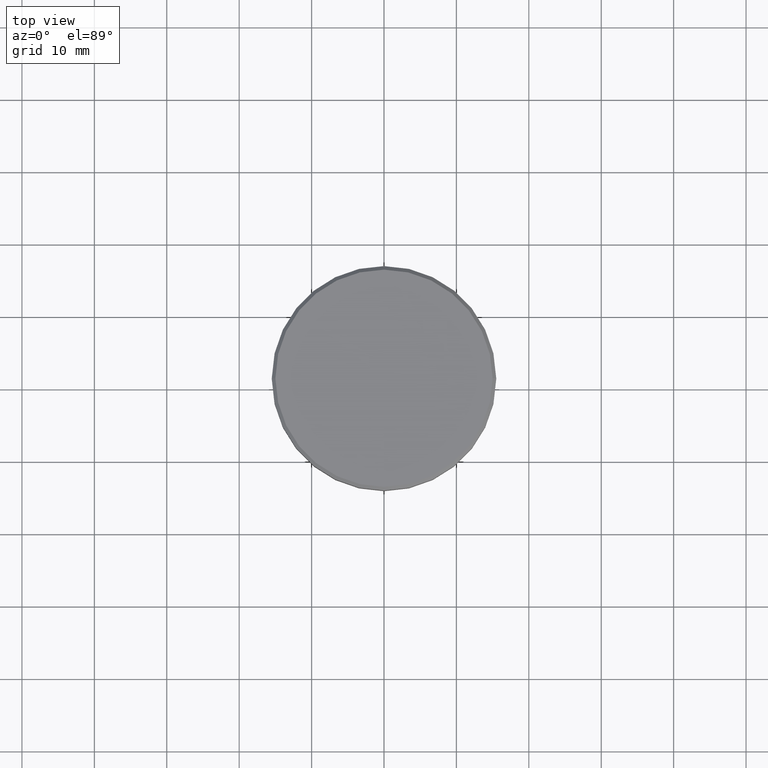
[diagram: clean part render]
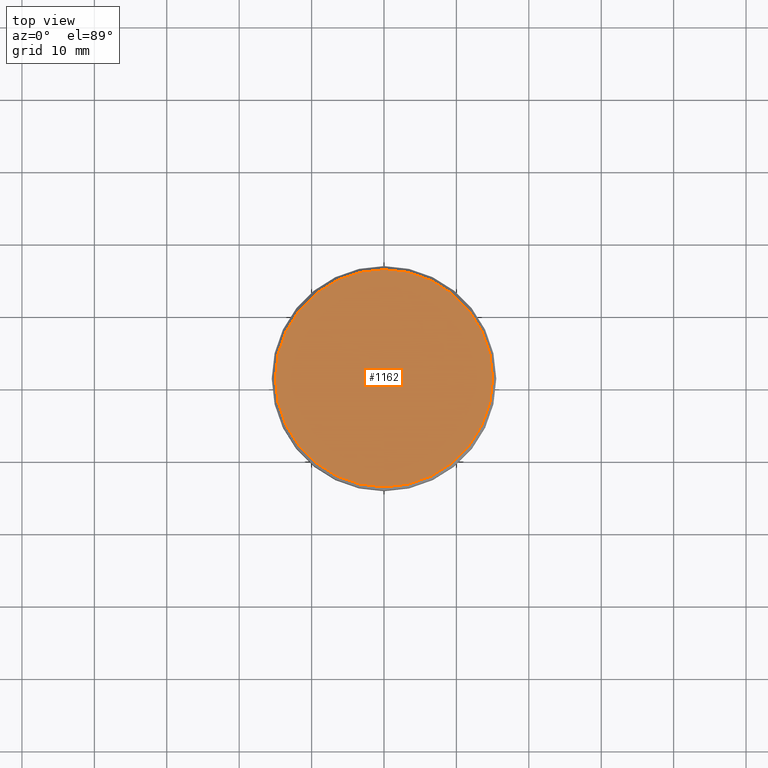
[diagram: same view with one face highlighted and labeled with its STEP entity id]
A machine part, top view. The second image highlights one B-rep face of the part: STEP entity #1162.
In plain terms, the highlighted planar face has unit normal (0, -0, 1).
Its self-contained STEP definition (entity closure, byte-faithful):
#16 = DIRECTION ( 'NONE',  ( -0.000000000000000000, -0.000000000000000000, 1.000000000000000000 ) ) ;
#34 = EDGE_CURVE ( 'NONE', #744, #269, #616, .T. ) ;
#77 = ORIENTED_EDGE ( 'NONE', *, *, #570, .T. ) ;
#78 = CARTESIAN_POINT ( 'NONE',  ( 15.00000000000000000, 1.867586368699713376E-15, 0.000000000000000000 ) ) ;
#110 = DIRECTION ( 'NONE',  ( -0.000000000000000000, -0.000000000000000000, 1.000000000000000000 ) ) ;
#122 = AXIS2_PLACEMENT_3D ( 'NONE', #331, #235, #968 ) ;
#124 = AXIS2_PLACEMENT_3D ( 'NONE', #738, #110, #478 ) ;
#143 = FACE_OUTER_BOUND ( 'NONE', #712, .T. ) ;
#144 = CIRCLE ( 'NONE', #124, 15.00000000000000000 ) ;
#235 = DIRECTION ( 'NONE',  ( 0.000000000000000000, -0.000000000000000000, 1.000000000000000000 ) ) ;
#269 = VERTEX_POINT ( 'NONE', #78 ) ;
#331 = CARTESIAN_POINT ( 'NONE',  ( 0.000000000000000000, 0.000000000000000000, 0.000000000000000000 ) ) ;
#478 = DIRECTION ( 'NONE',  ( 1.000000000000000000, 0.000000000000000000, 0.000000000000000000 ) ) ;
#569 = CARTESIAN_POINT ( 'NONE',  ( 0.000000000000000000, 0.000000000000000000, 0.000000000000000000 ) ) ;
#570 = EDGE_CURVE ( 'NONE', #269, #744, #144, .T. ) ;
#600 = PLANE ( 'NONE',  #122 ) ;
#616 = CIRCLE ( 'NONE', #902, 15.00000000000000000 ) ;
#712 = EDGE_LOOP ( 'NONE', ( #866, #77 ) ) ;
#738 = CARTESIAN_POINT ( 'NONE',  ( 0.000000000000000000, 0.000000000000000000, 0.000000000000000000 ) ) ;
#743 = DIRECTION ( 'NONE',  ( 1.000000000000000000, 0.000000000000000000, 0.000000000000000000 ) ) ;
#744 = VERTEX_POINT ( 'NONE', #949 ) ;
#866 = ORIENTED_EDGE ( 'NONE', *, *, #34, .T. ) ;
#902 = AXIS2_PLACEMENT_3D ( 'NONE', #569, #16, #743 ) ;
#949 = CARTESIAN_POINT ( 'NONE',  ( -15.00000000000000000, 0.000000000000000000, 0.000000000000000000 ) ) ;
#968 = DIRECTION ( 'NONE',  ( 1.000000000000000000, 0.000000000000000000, 0.000000000000000000 ) ) ;
#1162 = ADVANCED_FACE ( 'NONE', ( #143 ), #600, .T. ) ;